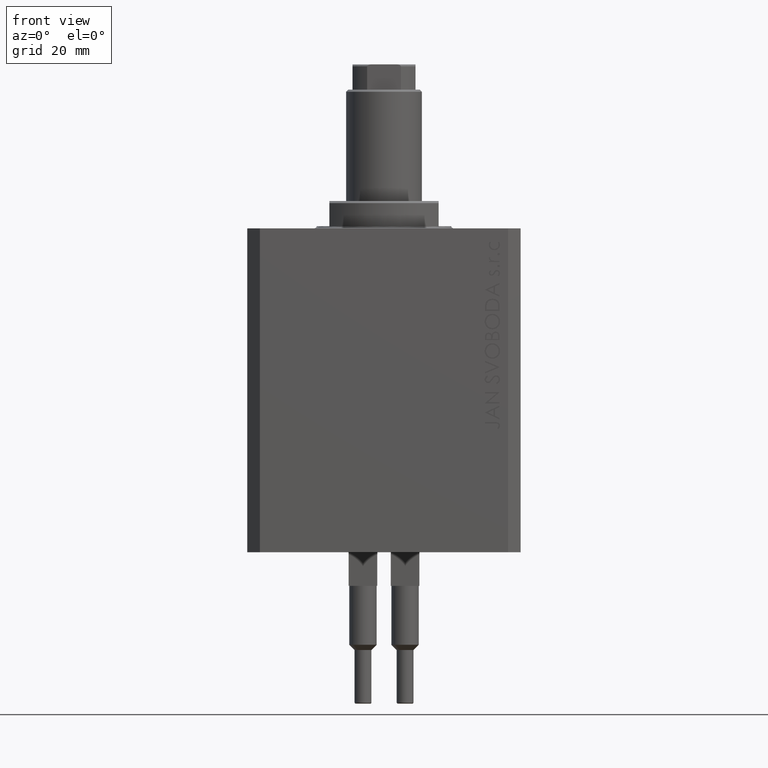
[diagram: clean part render]
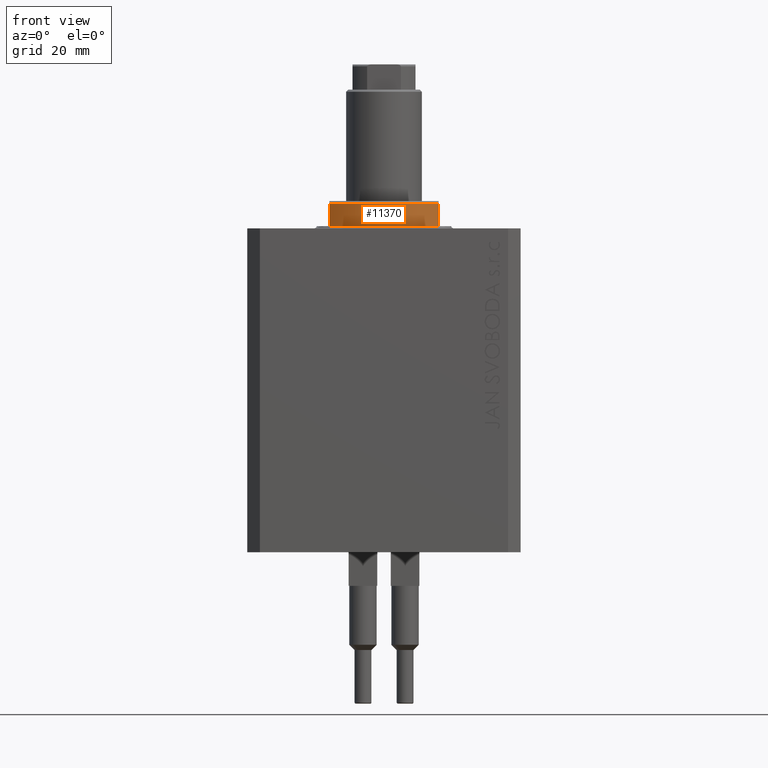
[diagram: same view with one face highlighted and labeled with its STEP entity id]
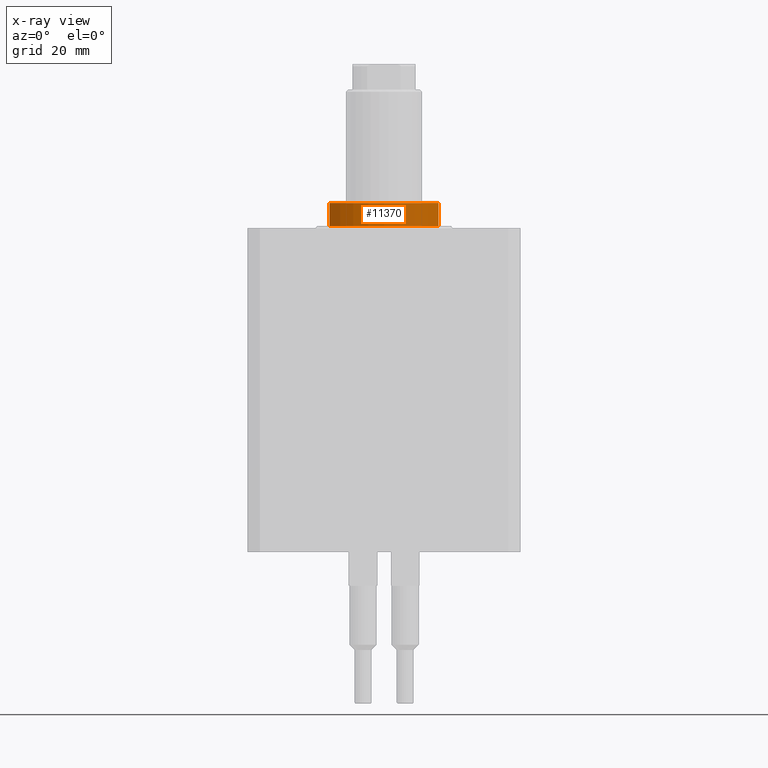
[diagram: x-ray of the same camera — body ghosted, the highlighted face saturated]
A machine part, front view. The second image highlights one B-rep face of the part: STEP entity #11370.
The next image is the same camera in x-ray: the body ghosted, the highlighted face saturated — about 0% of this face is hidden behind the body in this view.
In plain terms, the highlighted cylindrical surface (partial cylindrical patch) has radius 16 mm, axis along (0, 0, -1).
Its self-contained STEP definition (entity closure, byte-faithful):
#539 = CARTESIAN_POINT ( 'NONE',  ( 13.00000000000000000, -9.327379053088813876, -6.500000000000000000 ) ) ;
#1419 = EDGE_CURVE ( 'NONE', #26662, #7867, #39484, .T. ) ;
#1907 = AXIS2_PLACEMENT_3D ( 'NONE', #7045, #46809, #25455 ) ;
#4806 = CARTESIAN_POINT ( 'NONE',  ( -13.00000000000000000, -9.327379053088815652, -0.4999999999999995559 ) ) ;
#5777 = DIRECTION ( 'NONE',  ( -1.000000000000000000, 0.000000000000000000, 0.000000000000000000 ) ) ;
#7045 = CARTESIAN_POINT ( 'NONE',  ( 0.000000000000000000, 0.000000000000000000, -6.500000000000000000 ) ) ;
#7867 = VERTEX_POINT ( 'NONE', #18299 ) ;
#8436 = DIRECTION ( 'NONE',  ( 0.000000000000000000, 0.000000000000000000, 1.000000000000000000 ) ) ;
#9335 = ORIENTED_EDGE ( 'NONE', *, *, #38472, .T. ) ;
#10129 = CARTESIAN_POINT ( 'NONE',  ( 13.00000000000000000, -9.327379053088815652, -0.4999999999999995559 ) ) ;
#10155 = CARTESIAN_POINT ( 'NONE',  ( -13.00000000000000000, -9.327379053088813876, -6.500000000000000000 ) ) ;
#10917 = CYLINDRICAL_SURFACE ( 'NONE', #1907, 16.00000000000000000 ) ;
#11370 = ADVANCED_FACE ( 'NONE', ( #47773 ), #10917, .T. ) ;
#14073 = CARTESIAN_POINT ( 'NONE',  ( 13.00000000000000000, -9.327379053088815652, -6.000000000000030198 ) ) ;
#14147 = CIRCLE ( 'NONE', #47456, 16.00000000000000000 ) ;
#16682 = DIRECTION ( 'NONE',  ( 1.000000000000000000, 0.000000000000000000, 0.000000000000000000 ) ) ;
#18299 = CARTESIAN_POINT ( 'NONE',  ( -13.00000000000000000, -9.327379053088815652, -6.000000000000030198 ) ) ;
#18967 = DIRECTION ( 'NONE',  ( 0.000000000000000000, 0.000000000000000000, -1.000000000000000000 ) ) ;
#19360 = EDGE_LOOP ( 'NONE', ( #27894, #43396, #22764, #9335 ) ) ;
#19673 = LINE ( 'NONE', #539, #29911 ) ;
#22169 = EDGE_CURVE ( 'NONE', #30796, #26662, #14147, .T. ) ;
#22764 = ORIENTED_EDGE ( 'NONE', *, *, #1419, .T. ) ;
#25455 = DIRECTION ( 'NONE',  ( 1.000000000000000000, 0.000000000000000000, 0.000000000000000000 ) ) ;
#26144 = CIRCLE ( 'NONE', #30768, 16.00000000000000000 ) ;
#26662 = VERTEX_POINT ( 'NONE', #4806 ) ;
#26837 = CARTESIAN_POINT ( 'NONE',  ( 0.000000000000000000, 0.000000000000000000, -6.000000000000030198 ) ) ;
#27408 = VERTEX_POINT ( 'NONE', #14073 ) ;
#27613 = VECTOR ( 'NONE', #28794, 1000.000000000000000 ) ;
#27894 = ORIENTED_EDGE ( 'NONE', *, *, #35621, .F. ) ;
#28794 = DIRECTION ( 'NONE',  ( 0.000000000000000000, 0.000000000000000000, -1.000000000000000000 ) ) ;
#29911 = VECTOR ( 'NONE', #18967, 1000.000000000000000 ) ;
#30768 = AXIS2_PLACEMENT_3D ( 'NONE', #26837, #8436, #5777 ) ;
#30796 = VERTEX_POINT ( 'NONE', #10129 ) ;
#35086 = DIRECTION ( 'NONE',  ( -0.000000000000000000, -0.000000000000000000, -1.000000000000000000 ) ) ;
#35621 = EDGE_CURVE ( 'NONE', #30796, #27408, #19673, .T. ) ;
#38472 = EDGE_CURVE ( 'NONE', #7867, #27408, #26144, .T. ) ;
#39484 = LINE ( 'NONE', #10155, #27613 ) ;
#42867 = CARTESIAN_POINT ( 'NONE',  ( 0.000000000000000000, 0.000000000000000000, -0.4999999999999995559 ) ) ;
#43396 = ORIENTED_EDGE ( 'NONE', *, *, #22169, .T. ) ;
#46809 = DIRECTION ( 'NONE',  ( -0.000000000000000000, -0.000000000000000000, 1.000000000000000000 ) ) ;
#47456 = AXIS2_PLACEMENT_3D ( 'NONE', #42867, #35086, #16682 ) ;
#47773 = FACE_OUTER_BOUND ( 'NONE', #19360, .T. ) ;